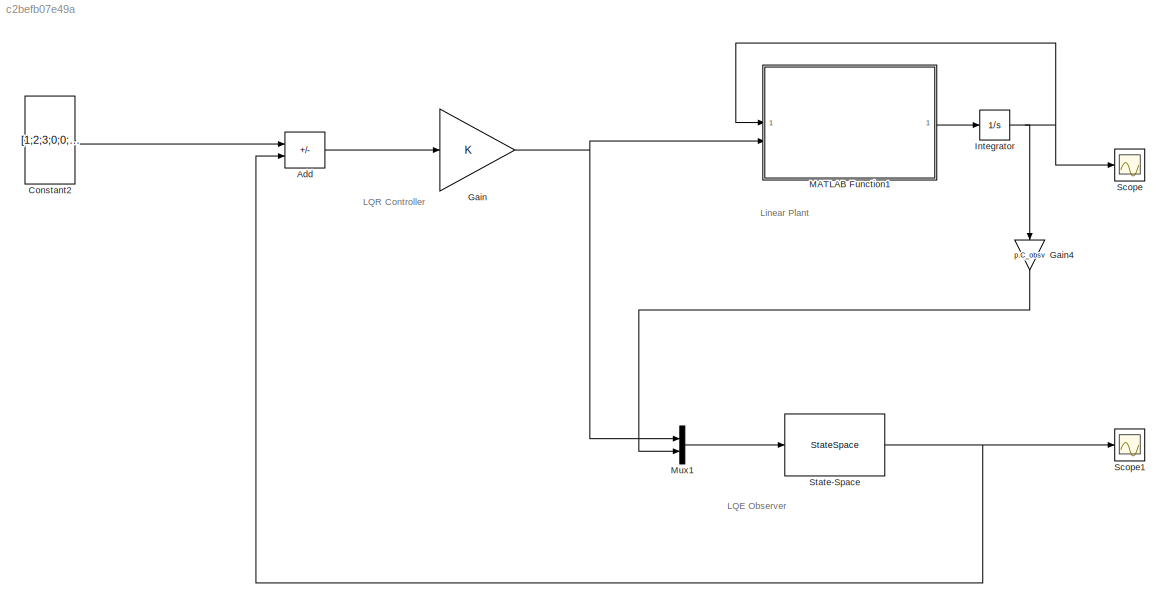
MODEL slx_c2befb07e49a
KIND model
CONFIG AbsTol = auto
CONFIG EnableMultiTasking = off
CONFIG FixedStep = auto
CONFIG MaxStep = auto
CONFIG MinStep = auto
CONFIG RelTol = 1e-3
CONFIG SampleTimeConstraint = Unconstrained
CONFIG SolverName = VariableStepAuto
CONFIG StartTime = 0.0
CONFIG StopTime = 10
BLOCK [Sum] Add
  IconShape = rectangular
  Inputs = +-
BLOCK [Constant] Constant2
  Value = [1;2;3;0;0;0;0;0;0;0;0;0]
BLOCK [Gain] Gain
  Gain = K
  Multiplication = Matrix(K*u)
BLOCK [Gain] Gain4
  Gain = p.C_obsv
  Multiplication = Matrix(K*u)
  NameLocation = left
BLOCK [Integrator] Integrator
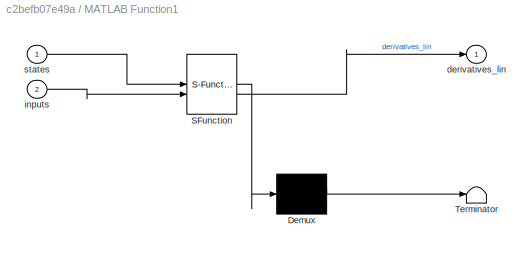
BLOCK [SubSystem] MATLAB Function1
  ErrorFcn = Stateflow.Translate.translate
  PermitHierarchicalResolution = ExplicitOnly
  SFBlockType = MATLAB Function
  TreatAsAtomicUnit = on
BLOCK [Demux] MATLAB Function1/ Demux 
  Outputs = 1
BLOCK [S-Function] MATLAB Function1/ SFunction 
  EnableBusSupport = off
  FunctionName = sf_sfun
  Parameters = p
  PortCounts = [2 2]
  SFcnIsStateOwnerBlock = off
  SFunctionDeploymentMode = off
  Tag = Stateflow S-Function 1
BLOCK [Terminator] MATLAB Function1/ Terminator 
BLOCK [Outport] MATLAB Function1/derivatives_lin
BLOCK [Inport] MATLAB Function1/inputs
  Port = 2
BLOCK [Inport] MATLAB Function1/states
BLOCK [Mux] Mux1
  DisplayOption = bar
  Inputs = 2
BLOCK [Scope] Scope
  ActiveDisplayYMaximum = 4.653365768390449
  ActiveDisplayYMinimum = -1.2083964498259996
  Floating = off
  GraphicalSettings = {"AxesScalingProperties":{"AlignXAxis":"Center","AlignYAxis":"Center","AutoScaleXAxisLimits":false,"AxesScaling":"Manual","AxesScalingNumUpdates":10,"ExpandOnly":true,"ScaleAxesLimitsAtStop":false,"XAxisDataRange":100,"YAxisDataRange":80},"DisplayProperties":{"ColorOrder":["auto","auto","auto","auto","auto","auto","auto","auto","auto","auto","auto","auto","auto","auto","auto","auto","auto","auto",...<+3568ch>
  MultipleDisplayCache = [{"MaxYLimMag":11.714719016294206,"MaxYLimReal":4.653365768390449,"MinYLimMag":0,"MinYLimReal":-1.2083964498259996,"PlotAsMagnitudePhase":false,"ShowGrid":true,"ShowLegend":true,"Title":"%<SignalLabel>","YLabel":""}]
  NumInputPorts = 1
  ScopeFrameLocation = window
  ShowLegend = on
  WasSavedAsWebScope = on
  WindowPosition = [1.000000,49.000000,1536.000000,793.000000,]
BLOCK [Scope] Scope1
  ActiveDisplayYMaximum = 4.13453460238871
  ActiveDisplayYMinimum = 0.10999741280988595
  DataLoggingVariableName = ScopeData1
  Floating = off
  GraphicalSettings = {"AxesScalingProperties":{"AlignXAxis":"Center","AlignYAxis":"Center","AutoScaleXAxisLimits":false,"AxesScaling":"Manual","AxesScalingNumUpdates":10,"ExpandOnly":true,"ScaleAxesLimitsAtStop":false,"XAxisDataRange":100,"YAxisDataRange":80},"DisplayProperties":{"ColorOrder":["auto","auto","auto","auto","auto","auto","auto","auto","auto","auto","auto","auto","auto","auto","auto","auto","auto","auto",...<+3602ch>
  MultipleDisplayCache = [{"MaxYLimMag":11.714300250145726,"MaxYLimReal":4.13453460238871,"MinYLimMag":0,"MinYLimReal":0.10999741280988595,"PlotAsMagnitudePhase":false,"ShowGrid":true,"ShowLegend":true,"Title":"%<SignalLabel>","YLabel":""}]
  NumInputPorts = 1
  ScopeFrameLocation = window
  ShowLegend = on
  WasSavedAsWebScope = on
  WindowPosition = [1.000000,49.000000,1536.000000,793.000000,]
BLOCK [StateSpace] State-Space
  A = Aobs
  B = Bobs
  C = eye(12)
  D = zeros(12, 10)
  InitialCondition = 0
ANNOTATION (root): LQE Observer
ANNOTATION (root): LQR Controller
ANNOTATION (root): Linear Plant
LINE Add:1 -> Gain:1
LINE Constant2:1 -> Add:1
LINE Gain4:1 -> Mux1:2
NET Gain:1 -> MATLAB Function1:2, Mux1:1
NET Integrator:1 -> Gain4:1, MATLAB Function1:1, Scope:1
LINE MATLAB Function1:1 -> Integrator:1
LINE Mux1:1 -> State-Space:1
NET State-Space:1 -> Add:2, Scope1:1
note: NET lines group one-source signal fan-out (src -> all destinations, sorted); 1:1 wires keep LINE
CHART MATLAB Function1 states=1 transitions=1
  STATE_LABEL 'eML_blk_kernel()'
  STATE_LABEL 'SCRIPT:\nfunction derivatives_lin  = derive_lin(states, inputs, p)\n\n    % Angles (roll, pitch, yaw) are small, approx 0\n    % sin(x) = x, cos(x) = x \n\n    % Derivatives are zero\n    % No torques (u2 to u4), but do need u1 = mg\n\n    % eta is [phi, theta, psi] = roll pitch yaw\n    xi= states(1:3); % x, y, z\n    xid = states(4:6); %x_prime, y_prime, z_prime\n    eta = states(7:9); % roll, pitch, yaw \n ...<+1155ch>'
CHART  states=0 transitions=0
